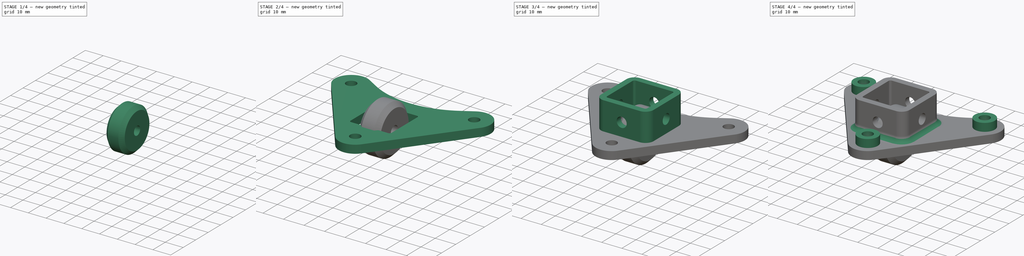
[diagram: build sequence overview — one tinted view per stage of 4, left to right]
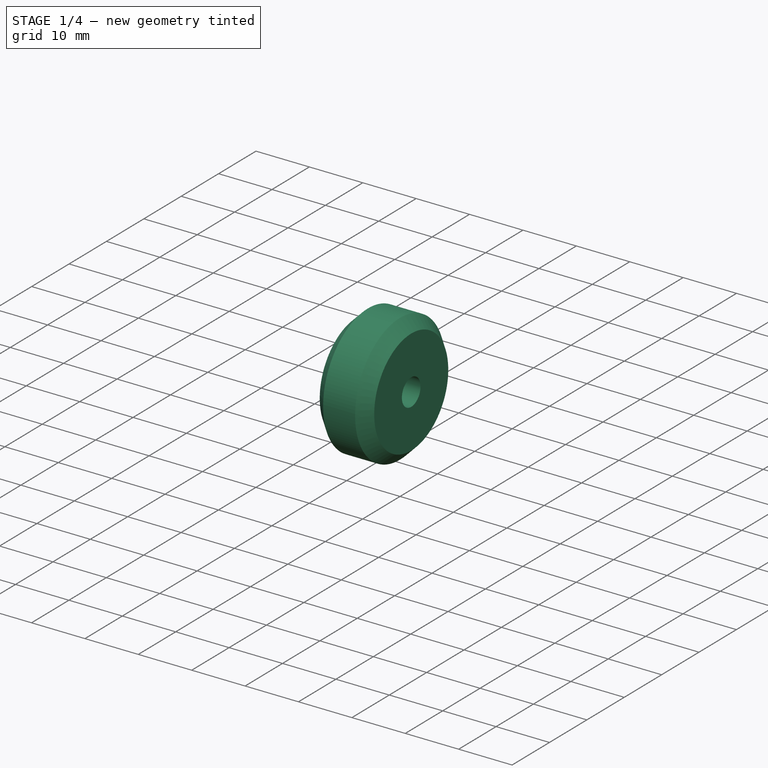
[diagram: stage 1 of 4 — iso view after this stage's code; geometry added in this stage tinted green]
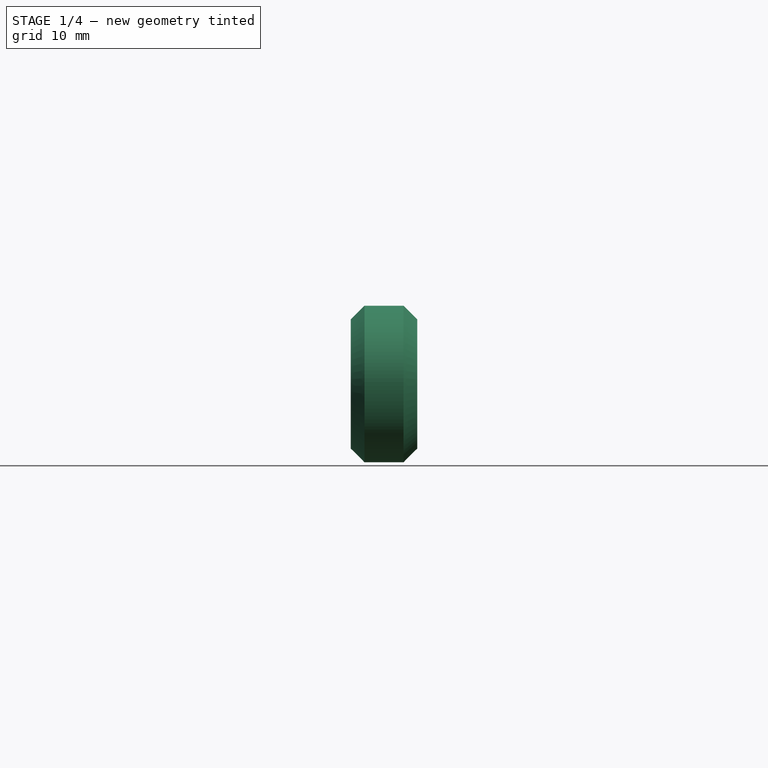
[diagram: stage 1 of 4 — front view after this stage's code; geometry added in this stage tinted green]
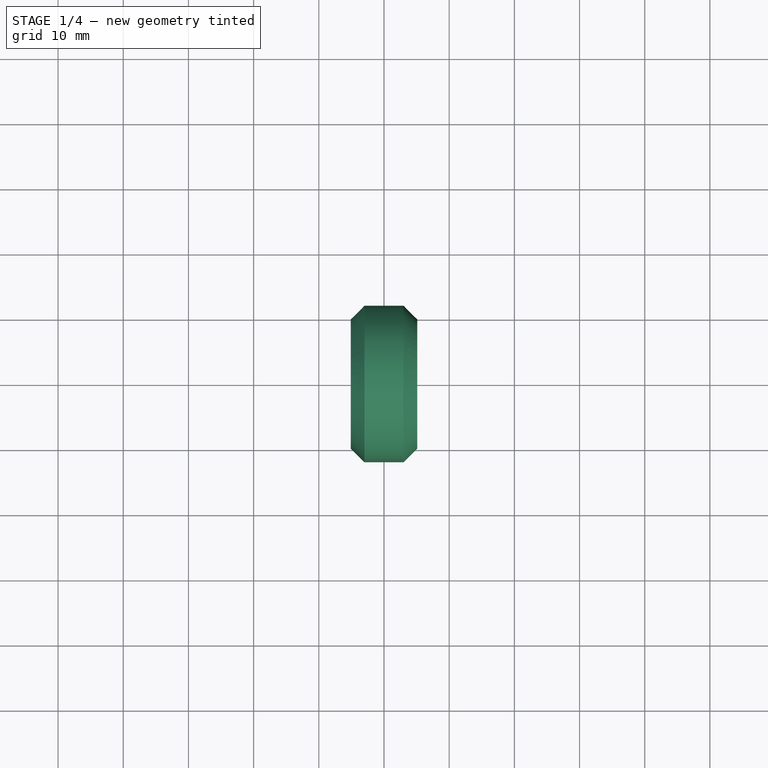
[diagram: stage 1 of 4 — top view after this stage's code; geometry added in this stage tinted green]
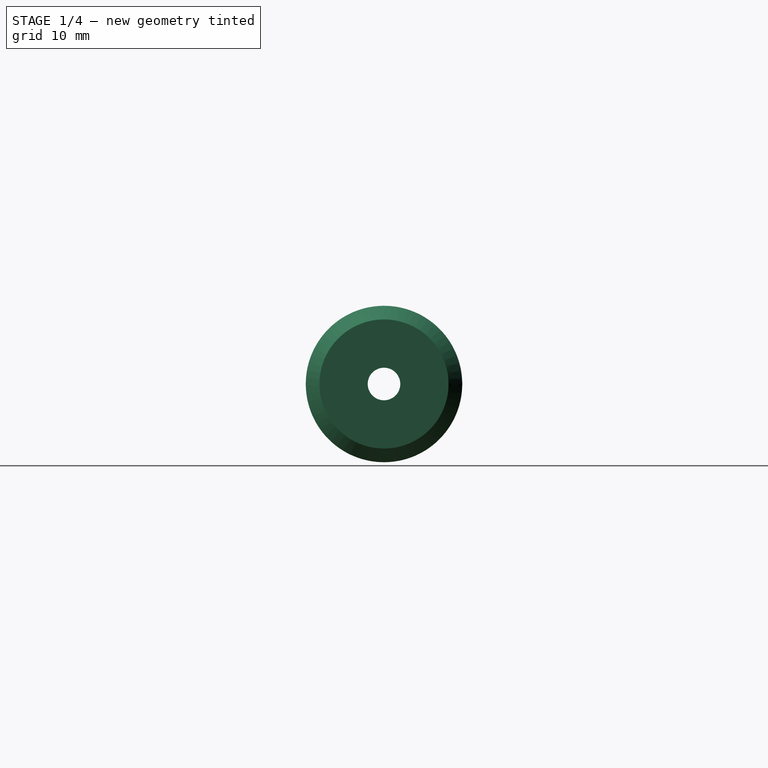
[diagram: stage 1 of 4 — right view after this stage's code; geometry added in this stage tinted green]
FCSTD DOCUMENT  (FreeCAD 0.18R15969 (Git))
Label: wheel-car
License: All rights reserved
LicenseURL: http://en.wikipedia.org/wiki/All_rights_reserved
objects: Sketcher::SketchObject×7, PartDesign::Body×4, PartDesign::Pad×3, PartDesign::Revolution×3, PartDesign::Pocket×1, PartDesign::PolarPattern×1, PartDesign::Fillet×1
note: 27 computed .brp shape members not serialized (recipe doc carries the construction recipe); baked Part::Feature solids carry a one-line shape summary decoded from their .brp

FEATURE [PartDesign::Body] Body001
  Group = -> [Sketch004,Revolution]
  Origin = -> Origin001
  Placement = pos=(0,-20,-10) rot=(0,1,0;1.5708rad)
  Tip = -> Revolution
FEATURE [Sketcher::SketchObject] Sketch005
  MapMode = 5
  Placement = pos=(0,0,0) rot=(1,0,0;1.5708rad)
  Support = -> [XZ_Plane002]
  sketch-geometry (8):
    g0: LineSegment StartX=-3 StartY=12 StartZ=0 EndX=-5.1 EndY=9.9 EndZ=0
    g1: LineSegment StartX=-3 StartY=12 StartZ=0 EndX=3 EndY=12 EndZ=0
    g2: LineSegment StartX=3 StartY=12 StartZ=0 EndX=5.1 EndY=9.9 EndZ=0
    g3: LineSegment StartX=-5.1 StartY=9.9 StartZ=0 EndX=-5.1 EndY=2.5 EndZ=0
    g4: LineSegment StartX=-5.1 StartY=2.5 StartZ=0 EndX=5.1 EndY=2.5 EndZ=0
    g5: LineSegment StartX=5.1 StartY=2.5 StartZ=0 EndX=5.1 EndY=9.9 EndZ=0
    g6: LineSegment [constr] StartX=-5.1 StartY=2.5 StartZ=0 EndX=0 EndY=0 EndZ=0
    g7: LineSegment [constr] StartX=0 StartY=0 StartZ=0 EndX=5.1 EndY=2.5 EndZ=0
  constraints (22):
    c: Coincident(g1,g0)
    c: Horizontal(g1)
    c: Coincident(g2,g1)
    c: Coincident(g3,g0)
    c: Vertical(g3)
    c: Coincident(g4,g3)
    c: Horizontal(g4)
    c: Coincident(g5,g4)
    c: Coincident(g5,g2)
    c: Vertical(g5)
    c: Coincident(g6,g3)
    c: Coincident(g6,g-1)
    c: Coincident(g7,g-1)
    c: Coincident(g7,g4)
    c: Equal(g7,g6)
    c: DistanceY(g-1,g3) = 2.5
    c: DistanceX(g3,g4) = 10.2
    c: Equal(g0,g2)
    c: Equal(g3,g5)
    c: Angle(g3,g0) = 2.35619
    c: DistanceX(g1,g1) = 6
    c: DistanceY(g-1,g0) = 12
FEATURE [PartDesign::Revolution] Revolution001
  Angle = 360
  Axis = (1,0,0)
  Base = (0,0,0)
  Placement = pos=(0,0,0) rot=(1,0,0;1.5708rad)
  Profile = -> Sketch005
  ReferenceAxis = -> X_Axis002
  Refine = true
  Reversed = true
FEATURE [PartDesign::Body] Body002
  Group = -> [Sketch005,Revolution001]
  Origin = -> Origin002
  Placement = pos=(-30,20,-10) rot=(0,1,0;1.5708rad)
  Tip = -> Revolution001
FEATURE [Sketcher::SketchObject] Sketch006
  MapMode = 5
  Placement = pos=(0,0,0) rot=(1,0,0;1.5708rad)
  Support = -> [XZ_Plane003]
  sketch-geometry (8):
    g0: LineSegment StartX=-3 StartY=12 StartZ=0 EndX=-5.1 EndY=9.9 EndZ=0
    g1: LineSegment StartX=-3 StartY=12 StartZ=0 EndX=3 EndY=12 EndZ=0
    g2: LineSegment StartX=3 StartY=12 StartZ=0 EndX=5.1 EndY=9.9 EndZ=0
    g3: LineSegment StartX=-5.1 StartY=9.9 StartZ=0 EndX=-5.1 EndY=2.5 EndZ=0
    g4: LineSegment StartX=-5.1 StartY=2.5 StartZ=0 EndX=5.1 EndY=2.5 EndZ=0
    g5: LineSegment StartX=5.1 StartY=2.5 StartZ=0 EndX=5.1 EndY=9.9 EndZ=0
    g6: LineSegment [constr] StartX=-5.1 StartY=2.5 StartZ=0 EndX=0 EndY=0 EndZ=0
    g7: LineSegment [constr] StartX=0 StartY=0 StartZ=0 EndX=5.1 EndY=2.5 EndZ=0
  constraints (22):
    c: Coincident(g1,g0)
    c: Horizontal(g1)
    c: Coincident(g2,g1)
    c: Coincident(g3,g0)
    c: Vertical(g3)
    c: Coincident(g4,g3)
    c: Horizontal(g4)
    c: Coincident(g5,g4)
    c: Coincident(g5,g2)
    c: Vertical(g5)
    c: Coincident(g6,g3)
    c: Coincident(g6,g-1)
    c: Coincident(g7,g-1)
    c: Coincident(g7,g4)
    c: Equal(g7,g6)
    c: DistanceY(g-1,g3) = 2.5
    c: DistanceX(g3,g4) = 10.2
    c: Equal(g0,g2)
    c: Equal(g3,g5)
    c: Angle(g3,g0) = 2.35619
    c: DistanceX(g1,g1) = 6
    c: DistanceY(g-1,g0) = 12
FEATURE [PartDesign::Revolution] Revolution002
  Angle = 360
  Axis = (1,0,0)
  Base = (0,0,0)
  Placement = pos=(0,0,0) rot=(1,0,0;1.5708rad)
  Profile = -> Sketch006
  ReferenceAxis = -> X_Axis003
  Refine = true
  Reversed = true
FEATURE [PartDesign::Body] Body003
  Group = -> [Sketch006,Revolution002]
  Origin = -> Origin003
  Placement = pos=(30,20,-10) rot=(0,1,0;1.5708rad)
  Tip = -> Revolution002
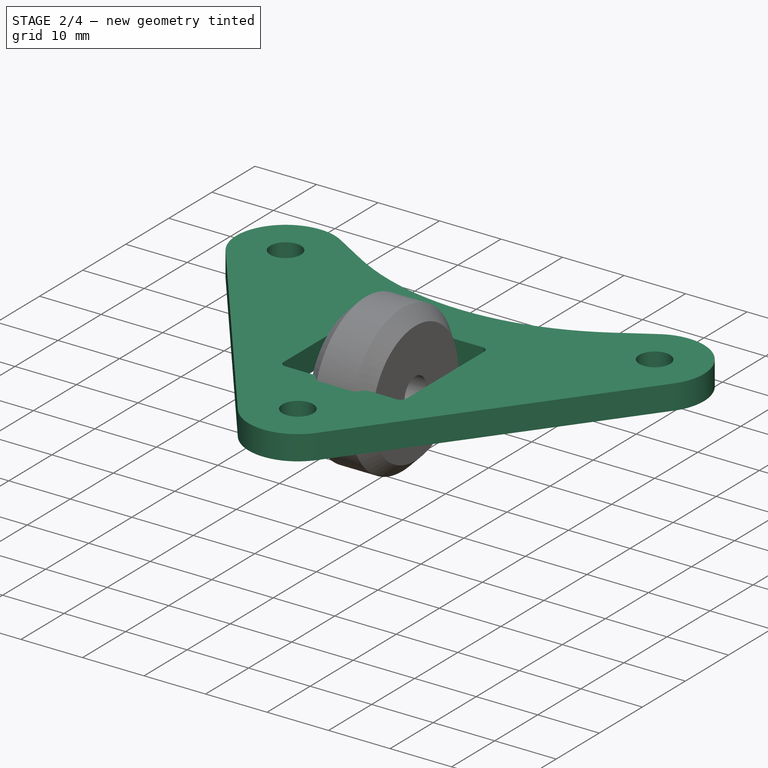
[diagram: stage 2 of 4 — iso view after this stage's code; geometry added in this stage tinted green]
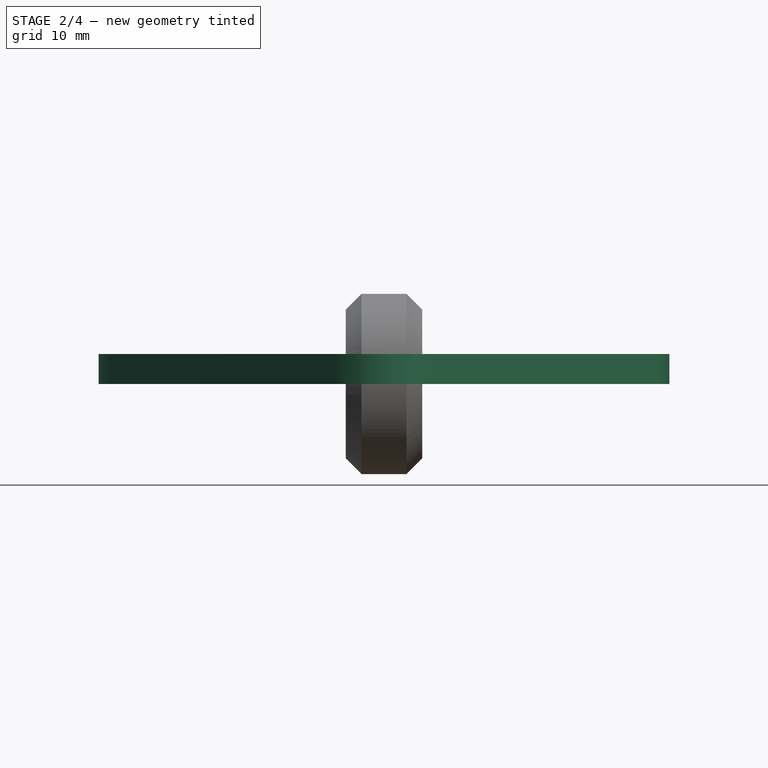
[diagram: stage 2 of 4 — front view after this stage's code; geometry added in this stage tinted green]
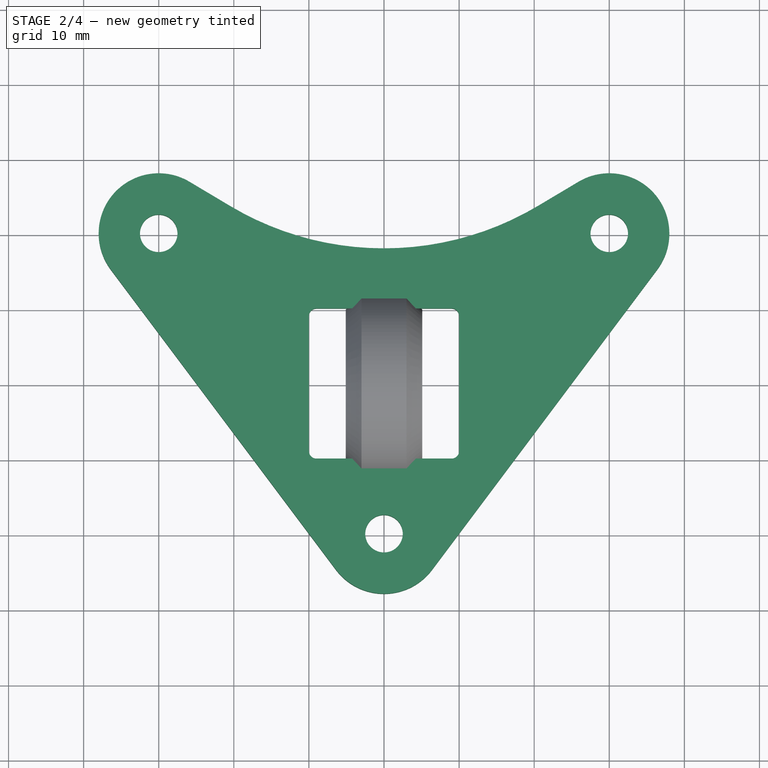
[diagram: stage 2 of 4 — top view after this stage's code; geometry added in this stage tinted green]
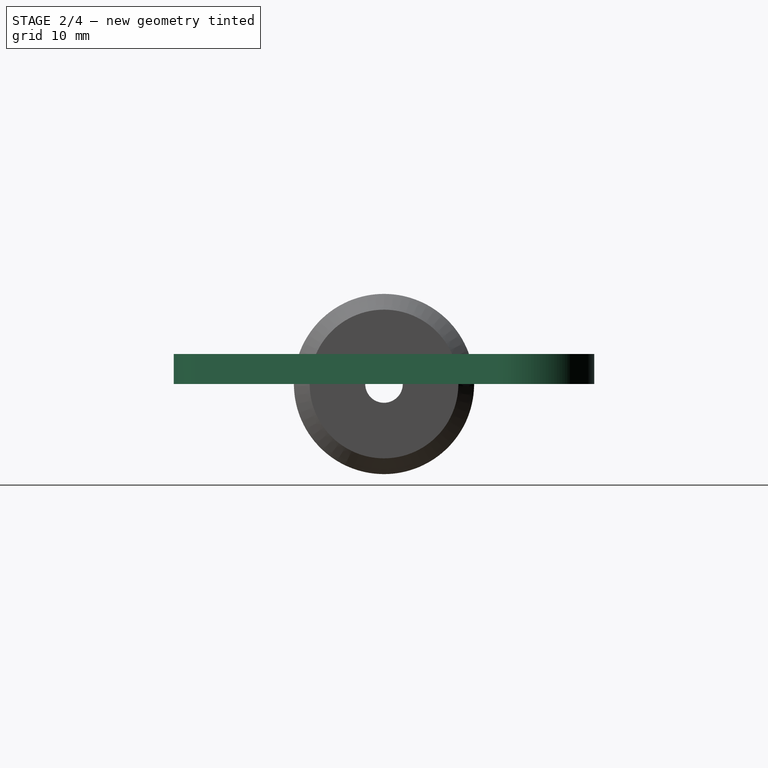
[diagram: stage 2 of 4 — right view after this stage's code; geometry added in this stage tinted green]
FEATURE [Sketcher::SketchObject] Sketch
  MapMode = 5
  Support = -> [XY_Plane]
  sketch-geometry (22):
    g0: LineSegment StartX=-9 StartY=-10 StartZ=0 EndX=9 EndY=-10 EndZ=0
    g1: LineSegment StartX=10 StartY=-9 StartZ=0 EndX=10 EndY=9 EndZ=0
    g2: LineSegment StartX=9 StartY=10 StartZ=0 EndX=-9 EndY=10 EndZ=0
    g3: LineSegment StartX=-10 StartY=9 StartZ=0 EndX=-10 EndY=-9 EndZ=0
    g4: Circle CenterX=30 CenterY=20 CenterZ=0 NormalX=0 NormalY=0 NormalZ=1 AngleXU=0 Radius=2.5
    g5: Circle CenterX=-30 CenterY=20 CenterZ=0 NormalX=0 NormalY=0 NormalZ=1 AngleXU=0 Radius=2.5
    g6: Circle CenterX=0 CenterY=-20 CenterZ=0 NormalX=0 NormalY=0 NormalZ=1 AngleXU=0 Radius=2.5
    g7: LineSegment StartX=36.4 StartY=15.2 StartZ=0 EndX=6.4 EndY=-24.8 EndZ=0
    g8: LineSegment StartX=-6.4 StartY=-24.8 StartZ=0 EndX=-36.4 EndY=15.2 EndZ=0
    g9: ArcOfCircle CenterX=-30 CenterY=20 CenterZ=0 NormalX=0 NormalY=0 NormalZ=1 AngleXU=0 Radius=8 StartAngle=1.03351 EndAngle=3.78509
    g10: ArcOfCircle CenterX=30 CenterY=20 CenterZ=0 NormalX=0 NormalY=0 NormalZ=1 AngleXU=0 Radius=8 StartAngle=5.63968 EndAngle=8.39126
    g11: ArcOfCircle CenterX=0 CenterY=-20 CenterZ=0 NormalX=0 NormalY=0 NormalZ=1 AngleXU=0 Radius=8 StartAngle=3.78509 EndAngle=5.63968
    g12: LineSegment StartX=-25.9056 StartY=26.8728 StartZ=0 EndX=-20.4721 EndY=23.6359 EndZ=0
    g13: LineSegment StartX=25.9056 StartY=26.8728 StartZ=0 EndX=20.4721 EndY=23.6359 EndZ=0
    g14: ArcOfCircle CenterX=0 CenterY=58 CenterZ=0 NormalX=0 NormalY=0 NormalZ=1 AngleXU=0 Radius=40 StartAngle=4.17511 EndAngle=5.24967
    g15: ArcOfCircle CenterX=-9 CenterY=9 CenterZ=0 NormalX=0 NormalY=0 NormalZ=1 AngleXU=0 Radius=1 StartAngle=1.5708 EndAngle=3.14159
    g16: ArcOfCircle CenterX=9 CenterY=9 CenterZ=0 NormalX=0 NormalY=0 NormalZ=1 AngleXU=0 Radius=1 StartAngle=7e-16 EndAngle=1.5708
    g17: ArcOfCircle CenterX=9 CenterY=-9 CenterZ=0 NormalX=0 NormalY=0 NormalZ=1 AngleXU=0 Radius=1 StartAngle=4.71239 EndAngle=6.28319
    g18: ArcOfCircle CenterX=-9 CenterY=-9 CenterZ=0 NormalX=0 NormalY=0 NormalZ=1 AngleXU=0 Radius=1 StartAngle=3.14159 EndAngle=4.71239
    g19: LineSegment [constr] StartX=-9 StartY=9 StartZ=0 EndX=0 EndY=0 EndZ=0
    g20: LineSegment [constr] StartX=0 StartY=0 StartZ=0 EndX=9 EndY=9 EndZ=0
    g21: LineSegment [constr] StartX=0 StartY=0 StartZ=0 EndX=-9 EndY=-9 EndZ=0
  constraints (52):
    c: Horizontal(g0)
    c: Horizontal(g2)
    c: Vertical(g1)
    c: Vertical(g3)
    c: Equal(g2,g3)
    c: PointOnObject(g6,g-2)
    c: Radius(g6) = 2.5
    c: Equal(g6,g4)
    c: Equal(g6,g5)
    c: Tangent(g8,g9) = 1.5708
    c: Tangent(g7,g10) = 1.5708
    c: Tangent(g7,g11) = 1.5708
    c: Tangent(g8,g11) = 1.5708
    c: Coincident(g11,g6)
    c: Coincident(g10,g4)
    c: Coincident(g5,g9)
    c: DistanceX(g5,g-1) = 30
    c: DistanceY(g-1,g5) = 20
    c: DistanceX(g-1,g4) = 30
    c: DistanceY(g-1,g4) = 20
    c: DistanceY(g6,g-1) = 20
    c: Radius(g10) = 8
    c: Equal(g10,g11)
    c: Equal(g10,g9)
    c: Tangent(g12,g9) = 1.5708
    c: Tangent(g10,g13) = -1.5708
    c: Tangent(g12,g14) = -1.5708
    c: Tangent(g13,g14) = 1.5708
    c: PointOnObject(g14,g-2)
    c: Tangent(g3,g15) = -1.5708
    c: Tangent(g2,g15) = -1.5708
    c: Tangent(g2,g16) = -1.5708
    c: Tangent(g1,g16) = -1.5708
    c: Tangent(g1,g17) = -1.5708
    c: Tangent(g0,g17) = -1.5708
    c: Tangent(g0,g18) = -1.5708
    c: Tangent(g3,g18) = -1.5708
    c: DistanceX(g3,g1) = 20
    c: Radius(g17) = 1
    c: Equal(g17,g18)
    c: Equal(g17,g15)
    c: Equal(g17,g16)
    c: Coincident(g19,g15)
    c: Coincident(g19,g-1)
    c: Coincident(g20,g-1)
    c: Coincident(g20,g16)
    c: Coincident(g21,g-1)
    c: Coincident(g21,g18)
    c: Equal(g19,g21)
    c: Equal(g21,g20)
    c: Radius(g14) = 40
    c: DistanceY(g-1,g14) = 58
FEATURE [PartDesign::Pad] Pad
  Length = 4
  Length2 = 100
  Profile = -> Sketch
  Refine = true
  Type = 0
FEATURE [PartDesign::Body] Body
  Group = -> [Sketch,Pad,Sketch001,Pad001,Sketch002,Pocket,PolarPattern,Sketch003,Pad002,Fillet]
  Origin = -> Origin
  Tip = -> Fillet
FEATURE [Sketcher::SketchObject] Sketch004
  MapMode = 5
  Placement = pos=(0,0,0) rot=(1,0,0;1.5708rad)
  Support = -> [XZ_Plane001]
  sketch-geometry (8):
    g0: LineSegment StartX=-3 StartY=12 StartZ=0 EndX=-5.1 EndY=9.9 EndZ=0
    g1: LineSegment StartX=-3 StartY=12 StartZ=0 EndX=3 EndY=12 EndZ=0
    g2: LineSegment StartX=3 StartY=12 StartZ=0 EndX=5.1 EndY=9.9 EndZ=0
    g3: LineSegment StartX=-5.1 StartY=9.9 StartZ=0 EndX=-5.1 EndY=2.5 EndZ=0
    g4: LineSegment StartX=-5.1 StartY=2.5 StartZ=0 EndX=5.1 EndY=2.5 EndZ=0
    g5: LineSegment StartX=5.1 StartY=2.5 StartZ=0 EndX=5.1 EndY=9.9 EndZ=0
    g6: LineSegment [constr] StartX=-5.1 StartY=2.5 StartZ=0 EndX=0 EndY=0 EndZ=0
    g7: LineSegment [constr] StartX=0 StartY=0 StartZ=0 EndX=5.1 EndY=2.5 EndZ=0
  constraints (22):
    c: Coincident(g1,g0)
    c: Horizontal(g1)
    c: Coincident(g2,g1)
    c: Coincident(g3,g0)
    c: Vertical(g3)
    c: Coincident(g4,g3)
    c: Horizontal(g4)
    c: Coincident(g5,g4)
    c: Coincident(g5,g2)
    c: Vertical(g5)
    c: Coincident(g6,g3)
    c: Coincident(g6,g-1)
    c: Coincident(g7,g-1)
    c: Coincident(g7,g4)
    c: Equal(g7,g6)
    c: DistanceY(g-1,g3) = 2.5
    c: DistanceX(g3,g4) = 10.2
    c: Equal(g0,g2)
    c: Equal(g3,g5)
    c: Angle(g3,g0) = 2.35619
    c: DistanceX(g1,g1) = 6
    c: DistanceY(g-1,g0) = 12
FEATURE [PartDesign::Revolution] Revolution
  Angle = 360
  Axis = (1,0,0)
  Base = (0,0,0)
  Placement = pos=(0,0,0) rot=(1,0,0;1.5708rad)
  Profile = -> Sketch004
  ReferenceAxis = -> X_Axis001
  Refine = true
  Reversed = true
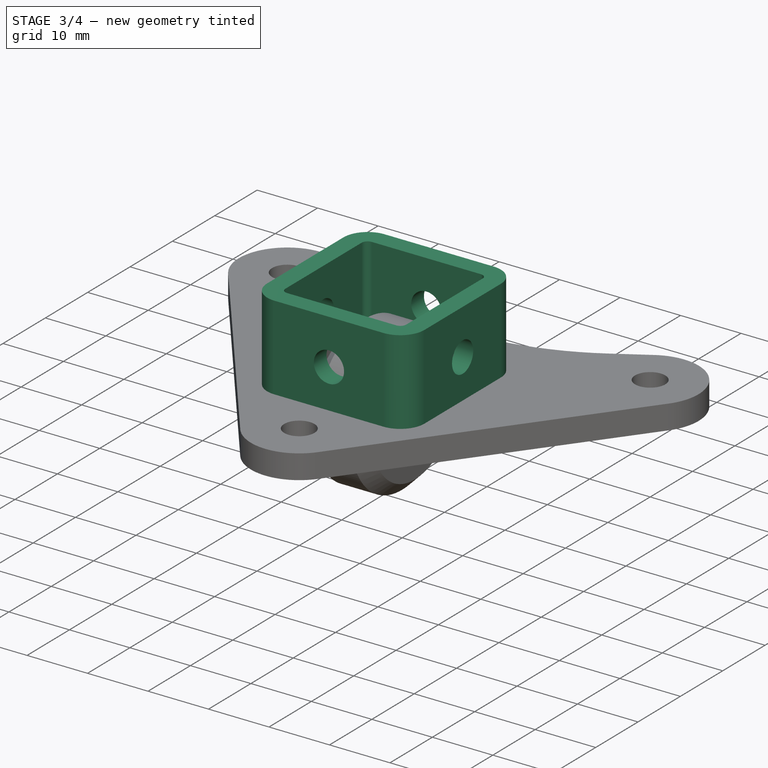
[diagram: stage 3 of 4 — iso view after this stage's code; geometry added in this stage tinted green]
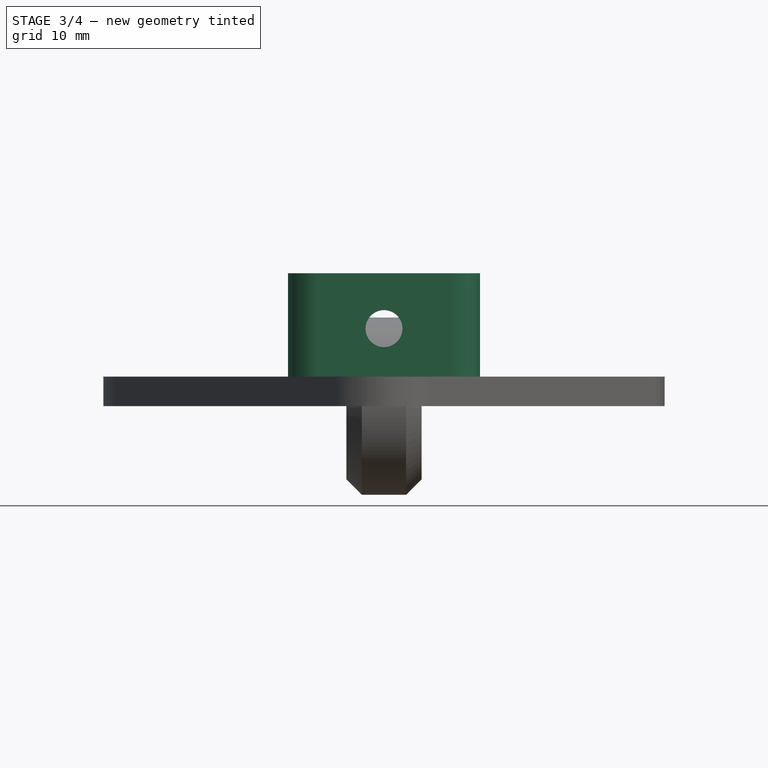
[diagram: stage 3 of 4 — front view after this stage's code; geometry added in this stage tinted green]
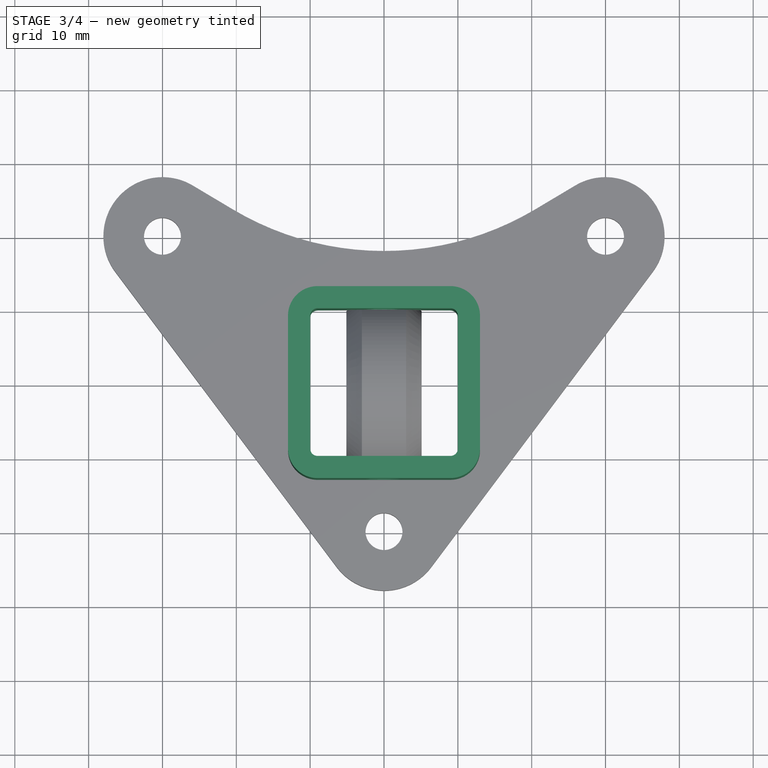
[diagram: stage 3 of 4 — top view after this stage's code; geometry added in this stage tinted green]
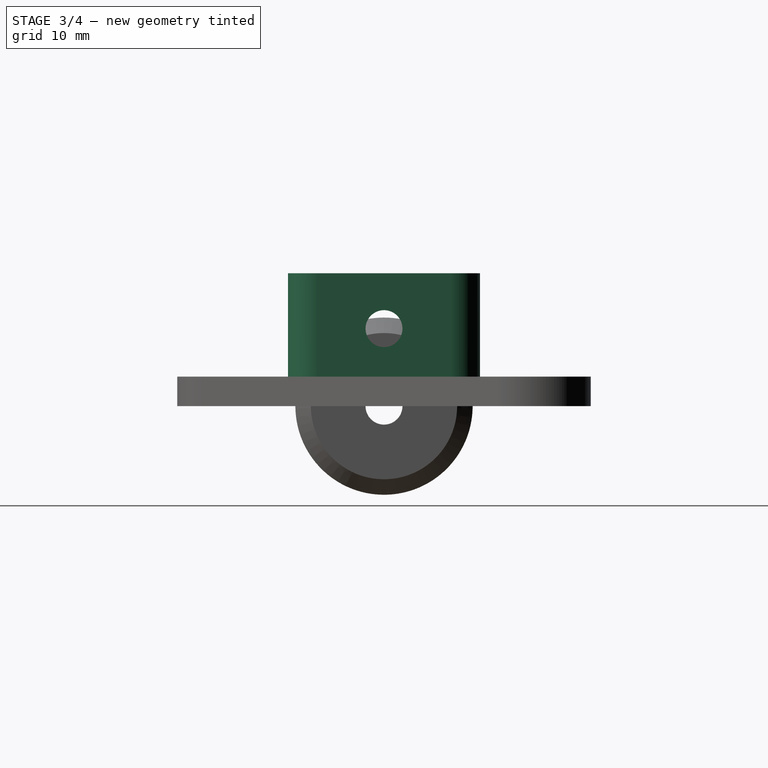
[diagram: stage 3 of 4 — right view after this stage's code; geometry added in this stage tinted green]
FEATURE [Sketcher::SketchObject] Sketch001
  ExternalGeometry = -> [Pad]
  MapMode = 5
  Placement = pos=(0,0,4) rot=(0,0,1;0rad)
  Support = -> [Pad]
  sketch-geometry (16):
    g0: LineSegment StartX=-9 StartY=-10 StartZ=0 EndX=9 EndY=-10 EndZ=0
    g1: LineSegment StartX=10 StartY=-9 StartZ=0 EndX=10 EndY=9 EndZ=0
    g2: LineSegment StartX=9 StartY=10 StartZ=0 EndX=-9 EndY=10 EndZ=0
    g3: LineSegment StartX=-10 StartY=9 StartZ=0 EndX=-10 EndY=-9 EndZ=0
    g4: ArcOfCircle CenterX=-9 CenterY=9 CenterZ=0 NormalX=0 NormalY=0 NormalZ=1 AngleXU=0 Radius=1 StartAngle=1.5708 EndAngle=3.14159
    g5: ArcOfCircle CenterX=9 CenterY=9 CenterZ=0 NormalX=0 NormalY=0 NormalZ=1 AngleXU=0 Radius=1 StartAngle=-2.07923e-11 EndAngle=1.5708
    g6: ArcOfCircle CenterX=9 CenterY=-9 CenterZ=0 NormalX=0 NormalY=0 NormalZ=1 AngleXU=0 Radius=1 StartAngle=4.71239 EndAngle=6.28319
    g7: ArcOfCircle CenterX=-9 CenterY=-9 CenterZ=0 NormalX=0 NormalY=0 NormalZ=1 AngleXU=0 Radius=1 StartAngle=3.14159 EndAngle=4.71239
    g8: LineSegment StartX=-9 StartY=13 StartZ=0 EndX=9 EndY=13 EndZ=0
    g9: LineSegment StartX=13 StartY=9 StartZ=0 EndX=13 EndY=-9 EndZ=0
    g10: LineSegment StartX=9 StartY=-13 StartZ=0 EndX=-9 EndY=-13 EndZ=0
    g11: LineSegment StartX=-13 StartY=-9 StartZ=0 EndX=-13 EndY=9 EndZ=0
    g12: ArcOfCircle CenterX=-9 CenterY=9 CenterZ=0 NormalX=0 NormalY=0 NormalZ=1 AngleXU=0 Radius=4 StartAngle=1.5708 EndAngle=3.14159
    g13: ArcOfCircle CenterX=9 CenterY=9 CenterZ=0 NormalX=0 NormalY=0 NormalZ=1 AngleXU=0 Radius=4 StartAngle=0 EndAngle=1.5708
    g14: ArcOfCircle CenterX=9 CenterY=-9 CenterZ=0 NormalX=0 NormalY=0 NormalZ=1 AngleXU=0 Radius=4 StartAngle=4.71239 EndAngle=6.28319
    g15: ArcOfCircle CenterX=-9 CenterY=-9 CenterZ=0 NormalX=0 NormalY=0 NormalZ=1 AngleXU=0 Radius=4 StartAngle=3.14159 EndAngle=4.71239
  constraints (30):
    c: Tangent(g3,g4) = -1.5708
    c: Tangent(g2,g4) = -1.5708
    c: Tangent(g2,g5) = -1.5708
    c: Tangent(g1,g5) = -1.5708
    c: Tangent(g1,g6) = -1.5708
    c: Tangent(g0,g6) = -1.5708
    c: Tangent(g0,g7) = -1.5708
    c: Tangent(g3,g7) = -1.5708
    c: Coincident(g1,g-4)
    c: Coincident(g2,g-4)
    c: Coincident(g1,g-5)
    c: Coincident(g0,g-5)
    c: Coincident(g3,g-6)
    c: Coincident(g3,g-3)
    c: Tangent(g11,g12) = 1.5708
    c: Tangent(g8,g12) = 1.5708
    c: Tangent(g8,g13) = 1.5708
    c: Tangent(g9,g13) = 1.5708
    c: Tangent(g9,g14) = 1.5708
    c: Tangent(g10,g14) = 1.5708
    c: Tangent(g10,g15) = 1.5708
    c: Tangent(g11,g15) = 1.5708
    c: Coincident(g12,g4)
    c: Coincident(g13,g5)
    c: Coincident(g7,g15)
    c: Coincident(g14,g6)
    c: Radius(g12) = 4
    c: Equal(g12,g13)
    c: Equal(g12,g14)
    c: Equal(g12,g15)
FEATURE [PartDesign::Pad] Pad001
  BaseFeature = -> Pad
  Length = 14
  Length2 = 100
  Profile = -> Sketch001
  Refine = true
  Type = 0
FEATURE [Sketcher::SketchObject] Sketch002
  MapMode = 5
  Placement = pos=(-8.21e-14,13,0) rot=(0,0.707107,0.707107;3.14159rad)
  sketch-geometry (1):
    g0: Circle CenterX=0 CenterY=10.5 CenterZ=0 NormalX=0 NormalY=0 NormalZ=1 AngleXU=0 Radius=2.5
  constraints (2):
    c: PointOnObject(g0,g-2)
    c: Radius(g0) = 2.5
FEATURE [PartDesign::Pocket] Pocket
  BaseFeature = -> Pad001
  Length = 9
  Length2 = 100
  Midplane = true
  Profile = -> Sketch002
  Refine = true
  Type = 0
FEATURE [PartDesign::PolarPattern] PolarPattern
  Angle = 360
  Axis = -> Z_Axis
  BaseFeature = -> Pocket
  Occurrences = 4
  Originals = -> [Pocket]
  Refine = true
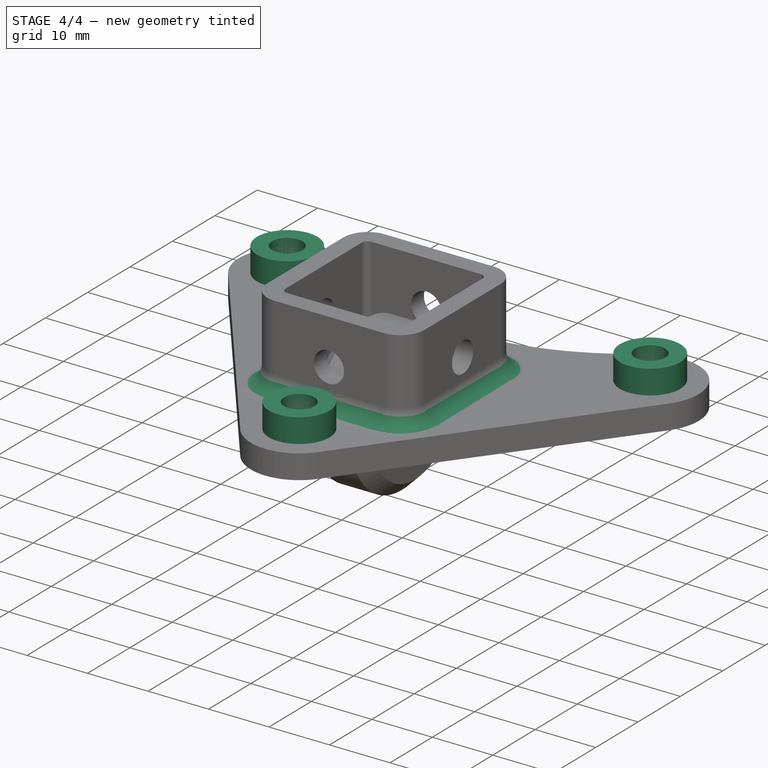
[diagram: stage 4 of 4 — iso view after this stage's code; geometry added in this stage tinted green]
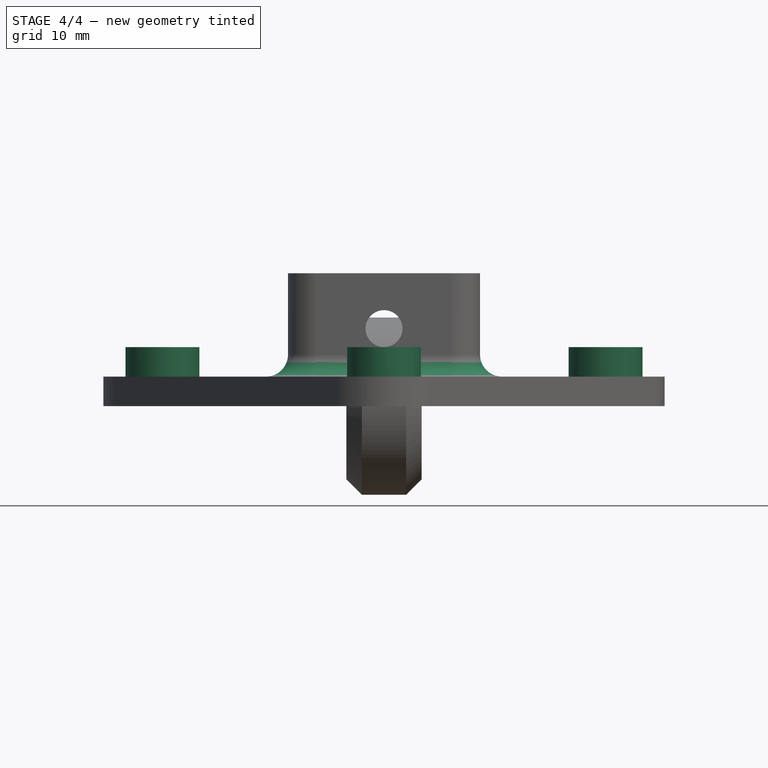
[diagram: stage 4 of 4 — front view after this stage's code; geometry added in this stage tinted green]
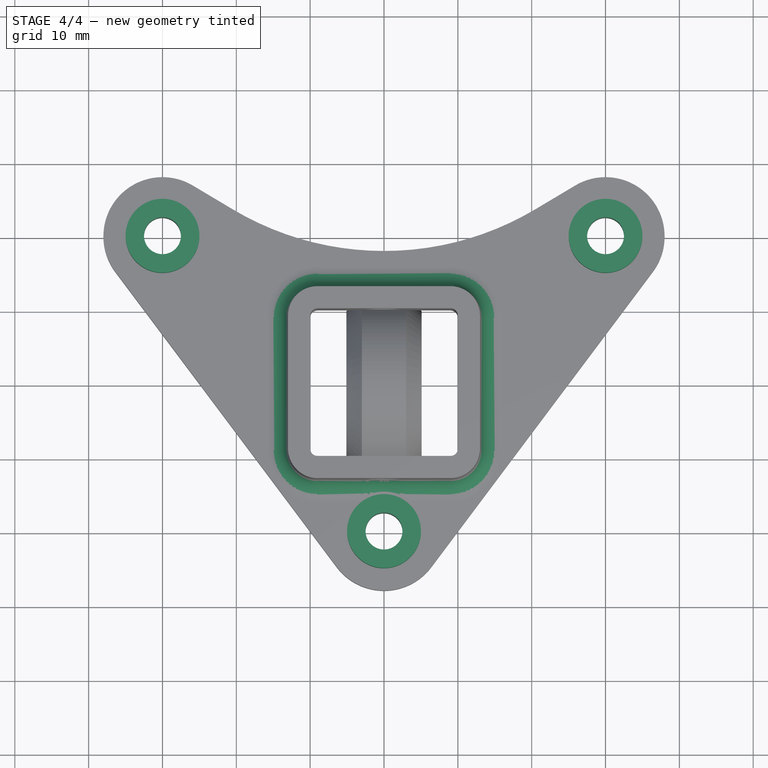
[diagram: stage 4 of 4 — top view after this stage's code; geometry added in this stage tinted green]
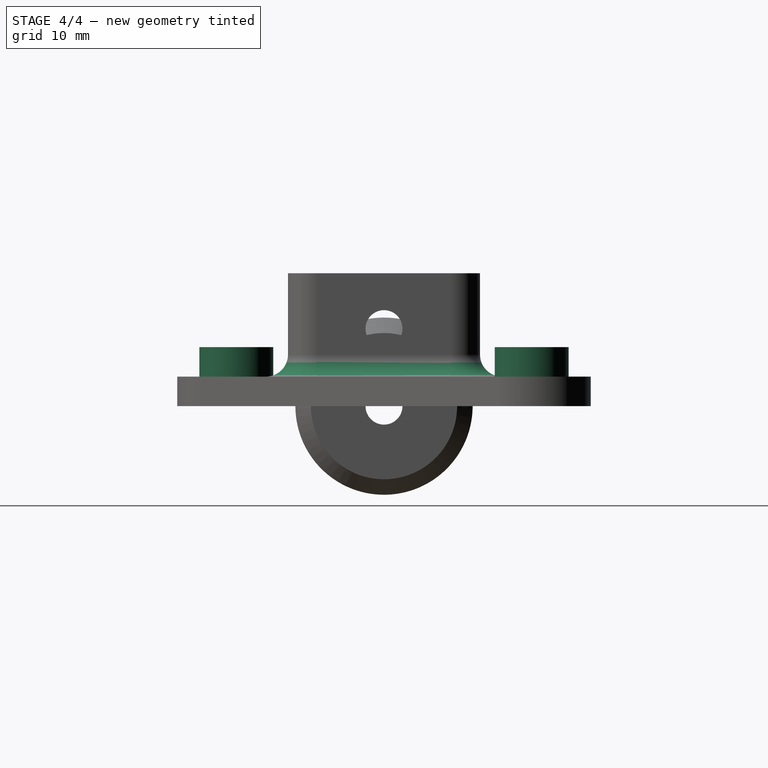
[diagram: stage 4 of 4 — right view after this stage's code; geometry added in this stage tinted green]
FEATURE [Sketcher::SketchObject] Sketch003
  ExternalGeometry = -> [PolarPattern]
  MapMode = 5
  Placement = pos=(0,0,4) rot=(0,0,1;0rad)
  Support = -> [PolarPattern]
  sketch-geometry (6):
    g0: Circle CenterX=-30 CenterY=20 CenterZ=0 NormalX=0 NormalY=0 NormalZ=1 AngleXU=0 Radius=2.5
    g1: Circle CenterX=30 CenterY=20 CenterZ=0 NormalX=0 NormalY=0 NormalZ=1 AngleXU=0 Radius=2.5
    g2: Circle CenterX=30 CenterY=20 CenterZ=0 NormalX=0 NormalY=0 NormalZ=1 AngleXU=0 Radius=5
    g3: Circle CenterX=-30 CenterY=20 CenterZ=0 NormalX=0 NormalY=0 NormalZ=1 AngleXU=0 Radius=5
    g4: Circle CenterX=0 CenterY=-20 CenterZ=0 NormalX=0 NormalY=0 NormalZ=1 AngleXU=0 Radius=5
    g5: Circle CenterX=0 CenterY=-20 CenterZ=0 NormalX=0 NormalY=0 NormalZ=1 AngleXU=0 Radius=2.5
  constraints (12):
    c: Coincident(g0,g-3)
    c: Coincident(g1,g-4)
    c: Coincident(g2,g1)
    c: Coincident(g3,g0)
    c: Coincident(g4,g-5)
    c: Coincident(g5,g4)
    c: Radius(g5) = 2.5
    c: Equal(g5,g1)
    c: Equal(g5,g0)
    c: Radius(g3) = 5
    c: Equal(g3,g2)
    c: Equal(g3,g4)
FEATURE [PartDesign::Pad] Pad002
  BaseFeature = -> PolarPattern
  Length = 4
  Length2 = 100
  Profile = -> Sketch003
  Refine = true
  Type = 0
FEATURE [PartDesign::Fillet] Fillet
  Base = -> Pad002 [Edge34]
  BaseFeature = -> Pad002
  Radius = 3
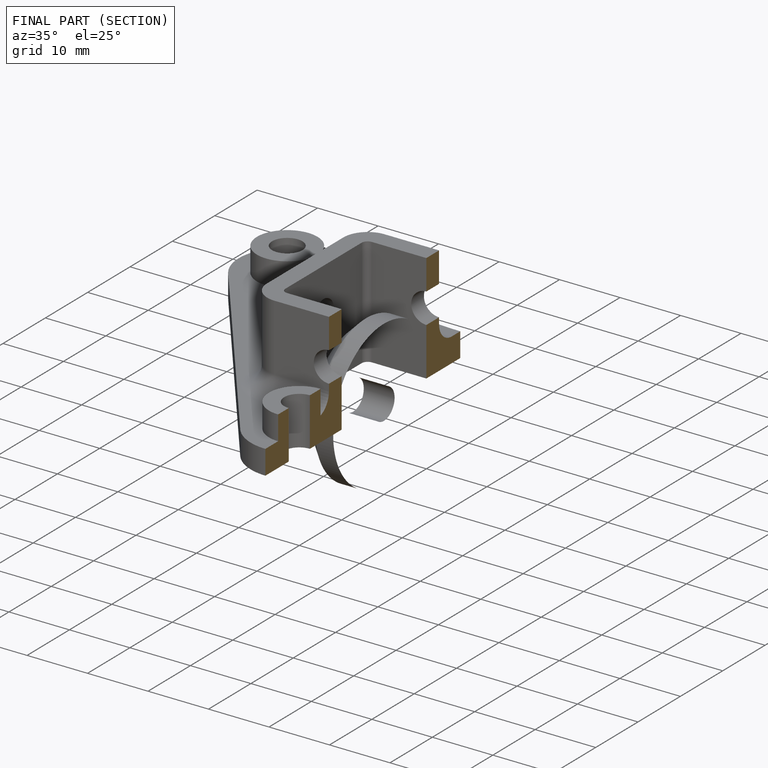
[diagram: finished part — half-section view (interior)]
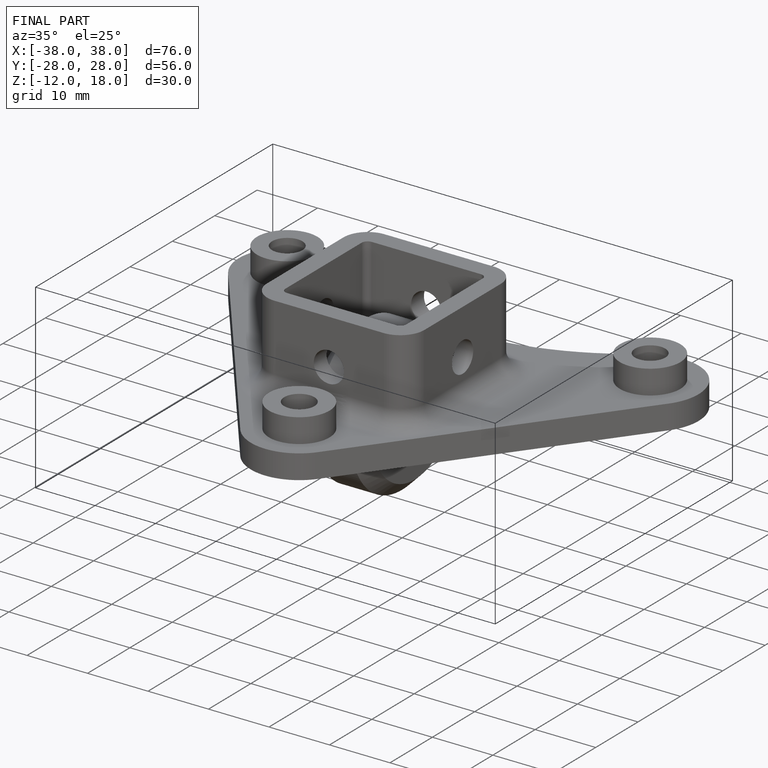
[diagram: finished part — iso view with bounding-box wireframe]
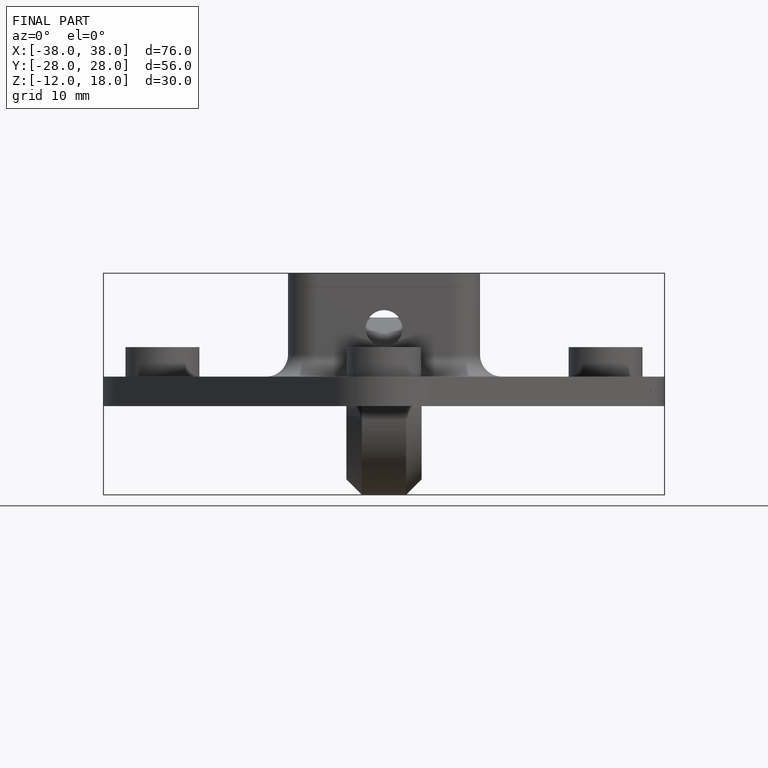
[diagram: finished part — front view with bounding-box wireframe]
